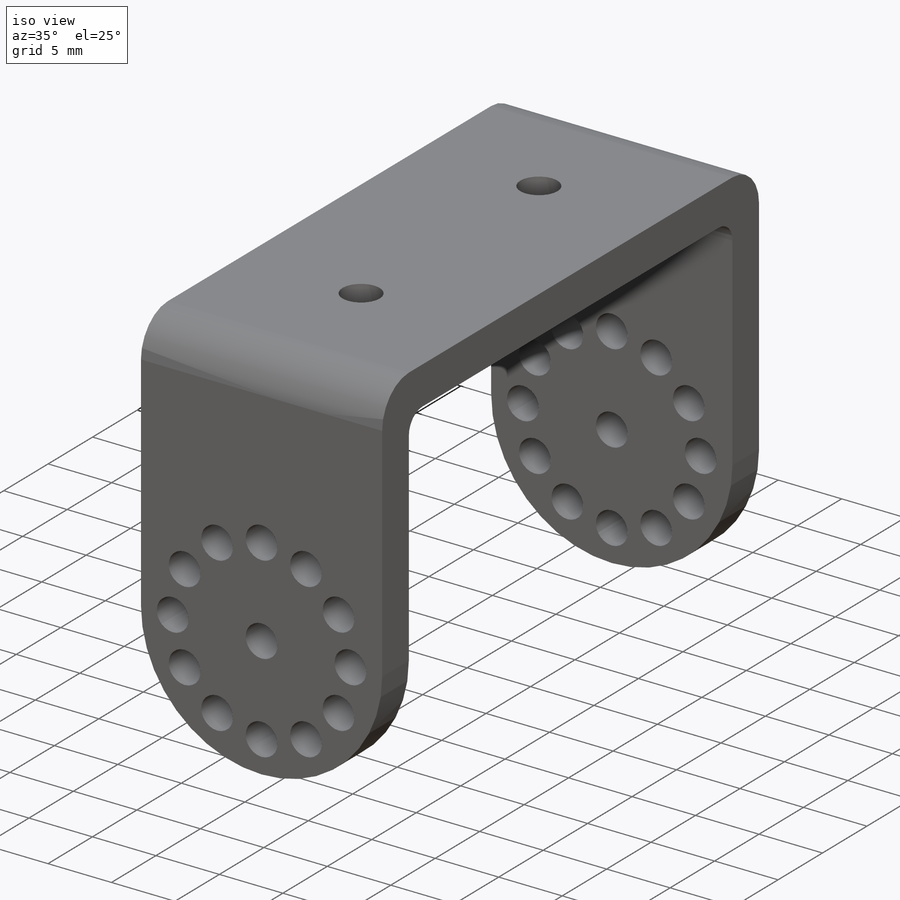
[diagram: iso view]
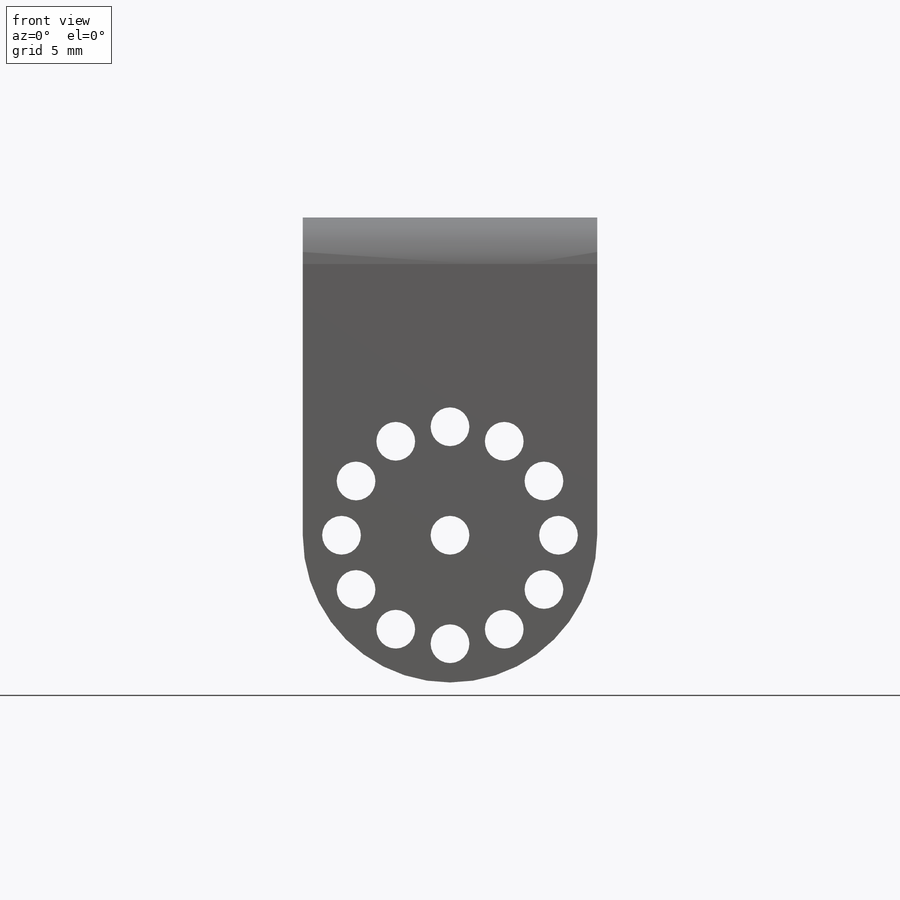
[diagram: front view]
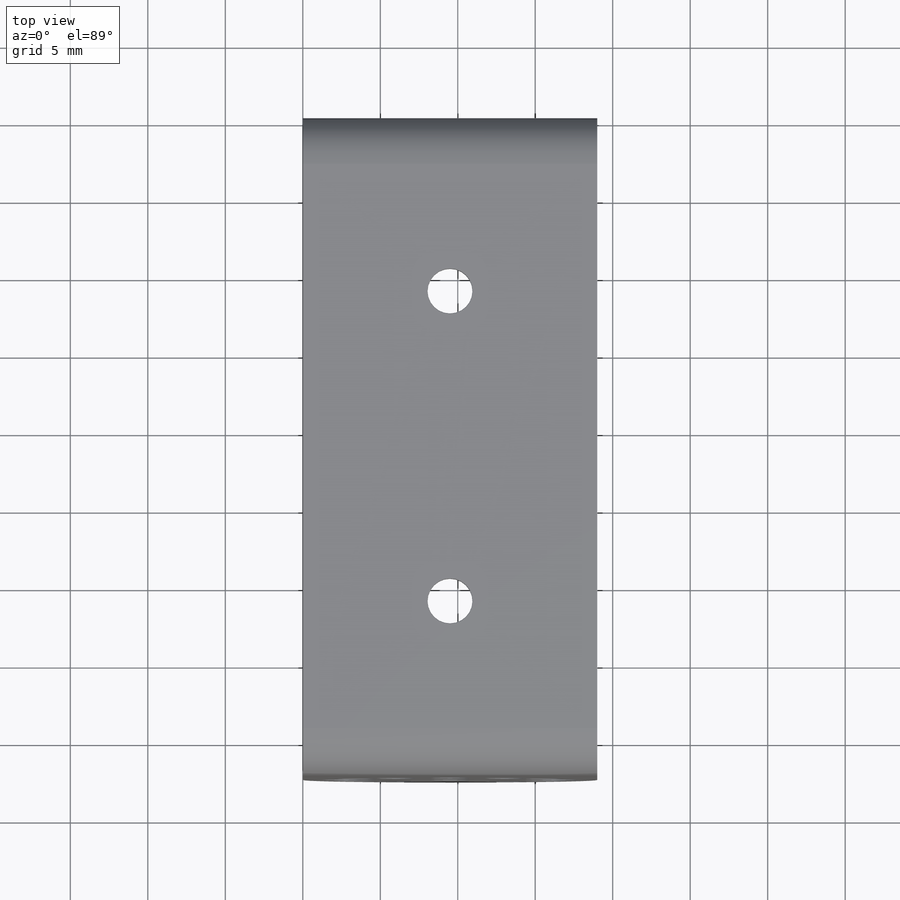
[diagram: top view]
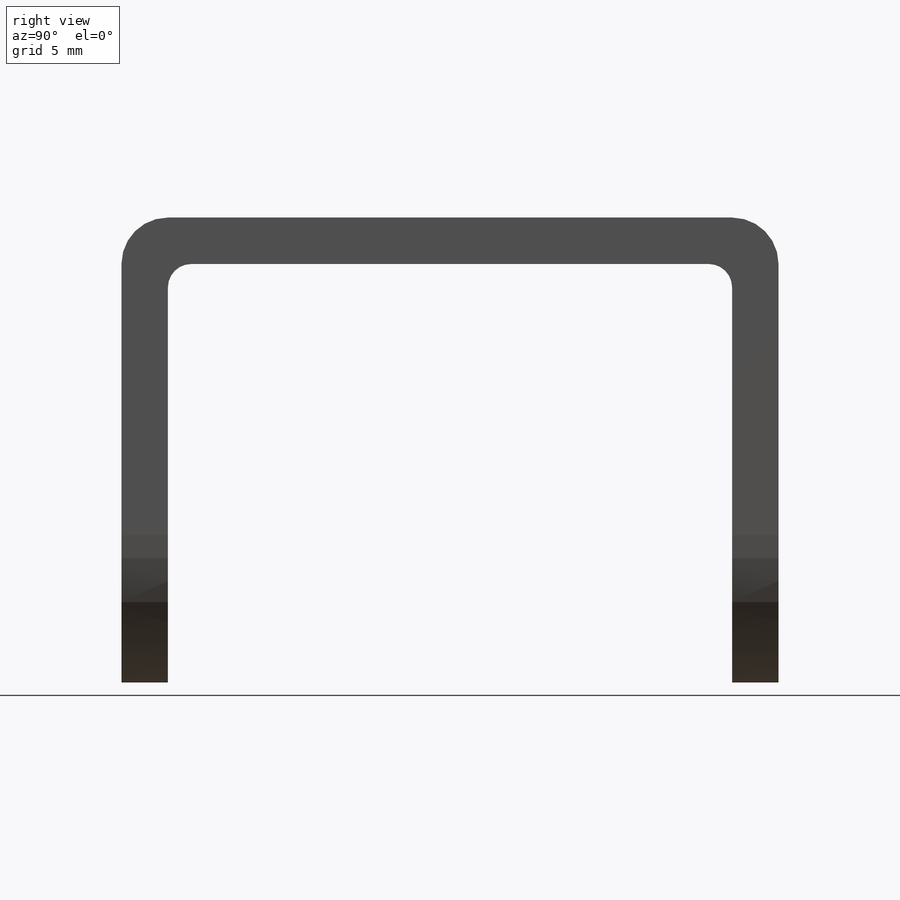
[diagram: right view]
SOLIDWORKS PART (.sldprt)
format: sldprt  version: not decoded by parser v0  size: 355,840 bytes
history: native  units: mm
features: sketch x7, hole x3, fillet x2, material x1, extrude x1, pattern_circular x1 (+13 scaffold rows collapsed)
feature tree (28):
  scaffold x13  (default folders/planes/origin — collapsed)
  material  "Material <not specified>"
  sketch  "Sketch16"  dims[D1=36.4mm D2=6.35mm D3=6.35mm D4=6.35mm D5=30.0mm D6=30.0mm]
  extrude  "Boss-Extrude1"  Depth=19mm
  fillet  "Fillet1"  Radius=9.5mm
  hole  "Ø2.5mm Dowel Hole1"  Diameter=2.5mm Depth=49.1mm
  sketch  "Sketch25"  dims[D1=7.0mm]
  sketch  "Sketch24"  dims[hole-wizard template sketch: 60 standard entries collapsed; hole parameters kept: c18.Thru Hole Depth=49.1mm]
  pattern_circular  "CirPattern1"  Count=12 Angle=360deg
  fillet  "Fillet2"  Radius=3mm
  hole  "Ø2.5mm Dowel Hole2"  Diameter=2.5mm Depth=49.1mm
  sketch  "Sketch27"  dims[D1=0.0mm D2=0.0mm]
  sketch  "Sketch26"  dims[hole-wizard template sketch: 60 standard entries collapsed; hole parameters kept: c18.Thru Hole Depth=49.1mm]
  hole  "CSK for M2.5 Flat Head Machine Screw1"  Diameter=2.9mm Depth=6.35mm
  sketch  "Sketch29"  dims[D1=20.0mm D2=10.0mm]
  sketch  "Sketch28"  dims[hole-wizard template sketch: 46 standard entries collapsed; hole parameters kept: c15.Thru Hole Dia.=2.9mm c15.Thru Hole Depth=6.35mm c15.Near C'Sink Dia.=5.5mm c15.D4=~3.666174mm c15.Near C'Sink Angle=90.0deg c15.Far C'Sink Dia.=2.95mm c15.D6=~9.919017mm c15.Far C'Sink Angle=90.0deg]
decode coverage: 14 of 14 modeling features carry decoded parameters
note: ~ marks probable driven/reference dimensions
note: suppression state not decoded; provenance and decode notes live in map.json
